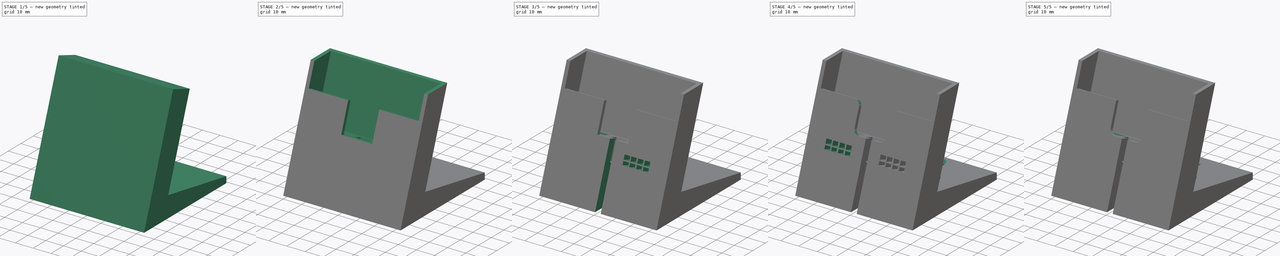
[diagram: build sequence overview — one tinted view per stage of 5, left to right]
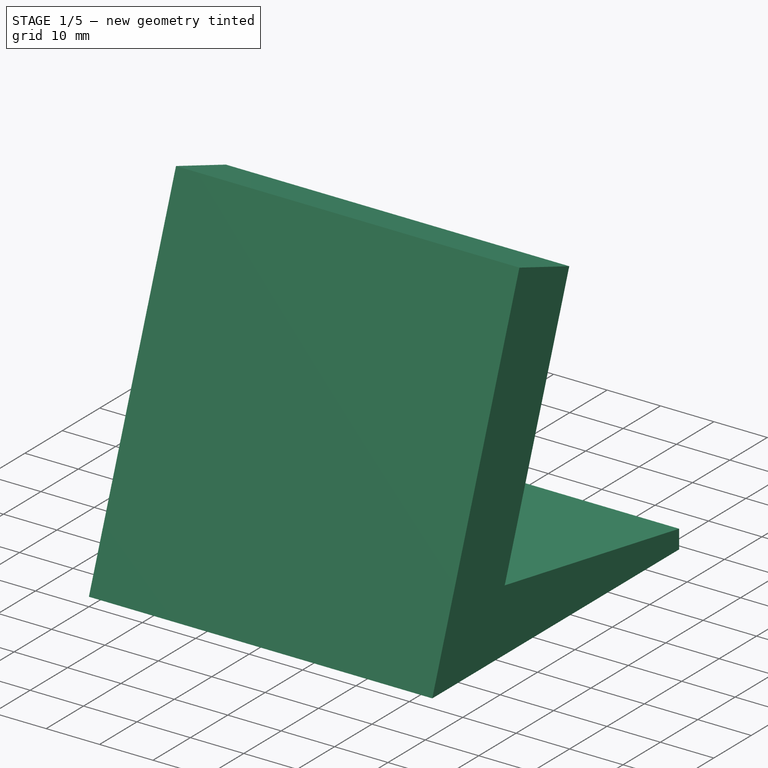
[diagram: stage 1 of 5 — iso view after this stage's code; geometry added in this stage tinted green]
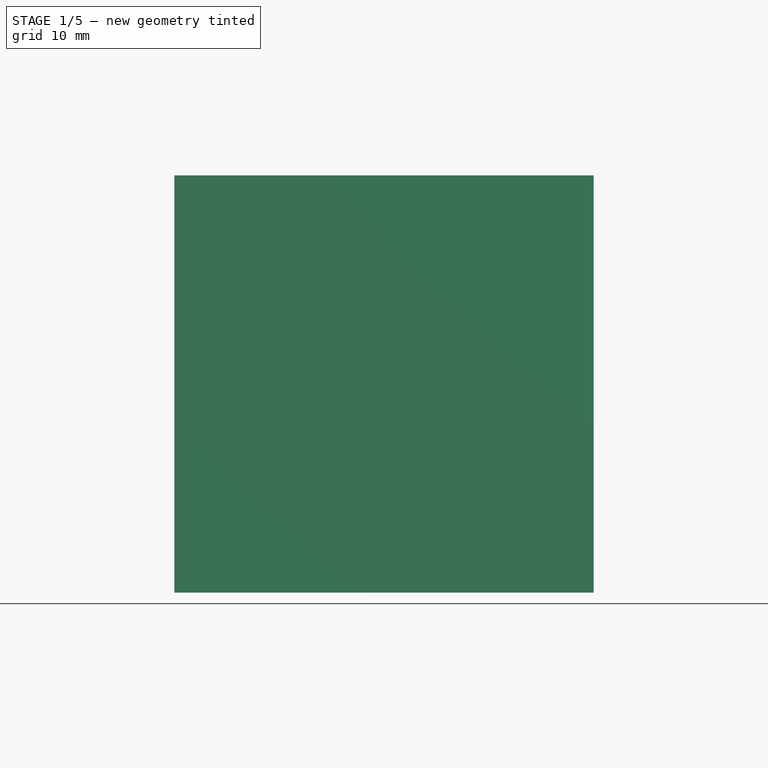
[diagram: stage 1 of 5 — front view after this stage's code; geometry added in this stage tinted green]
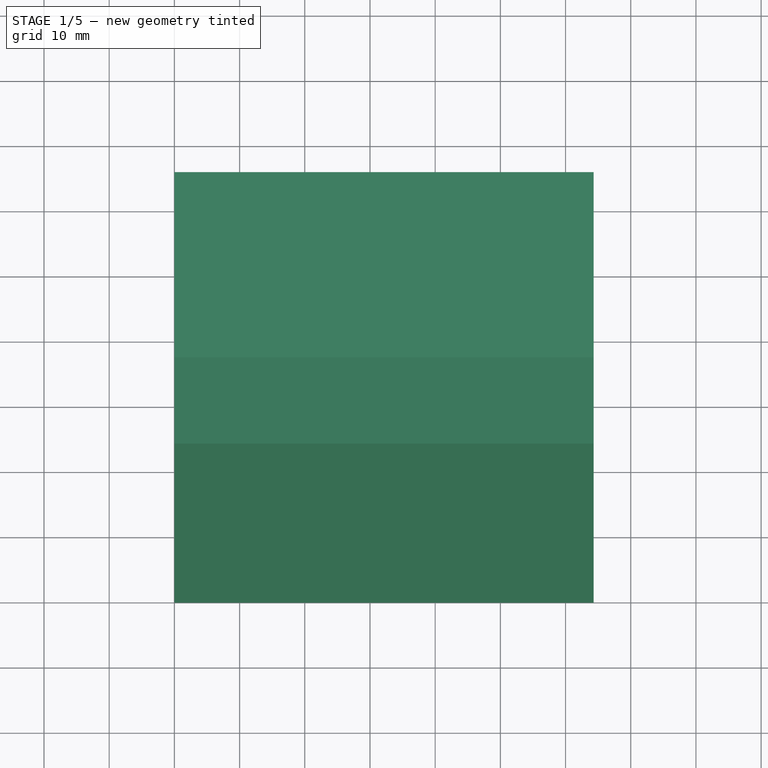
[diagram: stage 1 of 5 — top view after this stage's code; geometry added in this stage tinted green]
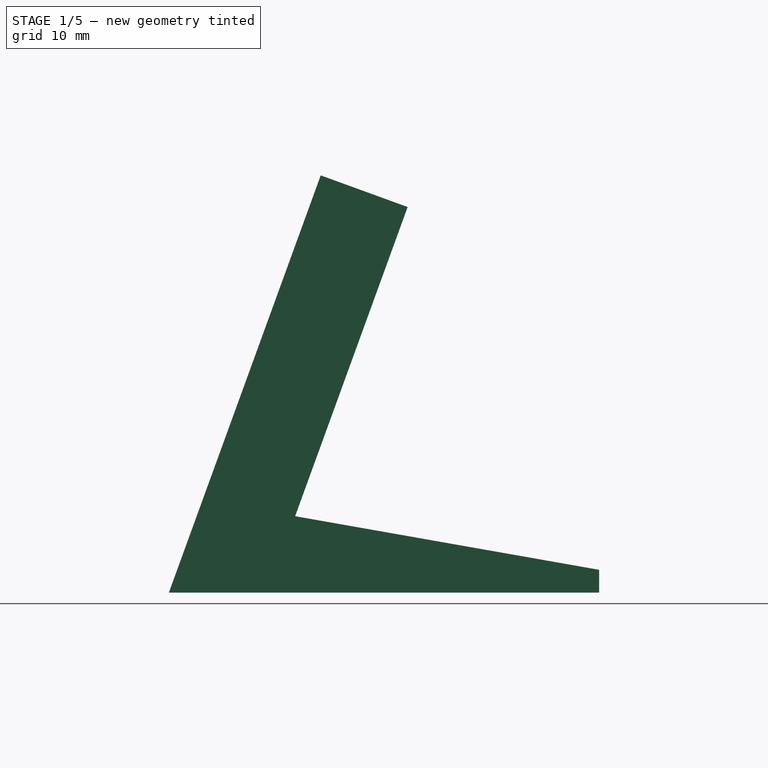
[diagram: stage 1 of 5 — right view after this stage's code; geometry added in this stage tinted green]
FCSTD DOCUMENT  (FreeCAD 0.16R6706 (Git))
Label: dock10_bumps
License: All rights reserved
LicenseURL: http://en.wikipedia.org/wiki/All_rights_reserved
objects: Sketcher::SketchObject×15, PartDesign::Pocket×12, PartDesign::Chamfer×4, PartDesign::Pad×3, PartDesign::Fillet×2, PartDesign::Mirrored×1
note: 52 computed .brp shape members not serialized (recipe doc carries the construction recipe); baked Part::Feature solids carry a one-line shape summary decoded from their .brp

FEATURE [Sketcher::SketchObject] Sketch
  sketch-geometry (8):
    g0: LineSegment [constr] StartX=2 StartY=-2 StartZ=0 EndX=62.3 EndY=-2 EndZ=0
    g1: LineSegment StartX=0 StartY=0 StartZ=0 EndX=64.3 EndY=0 EndZ=0
    g2: LineSegment StartX=64.3 StartY=0 StartZ=0 EndX=64.3 EndY=66 EndZ=0
    g3: LineSegment StartX=64.3 StartY=66 StartZ=0 EndX=0 EndY=66 EndZ=0
    g4: LineSegment StartX=0 StartY=66 StartZ=0 EndX=0 EndY=0 EndZ=0
    g5: LineSegment [constr] StartX=2 StartY=-2 StartZ=0 EndX=0 EndY=-2 EndZ=0
    g6: LineSegment [constr] StartX=62.3 StartY=-2 StartZ=0 EndX=64.3 EndY=-2 EndZ=0
    g7: LineSegment [constr] StartX=64.3 StartY=-2 StartZ=0 EndX=64.3 EndY=0 EndZ=0
  constraints (23):
    c: Horizontal(g0)
    c: DistanceX(g0,g0) = 60.3
    c: Coincident(g1,g2)
    c: Coincident(g2,g3)
    c: Coincident(g3,g4)
    c: Coincident(g4,g1)
    c: Horizontal(g1)
    c: Horizontal(g3)
    c: Vertical(g2)
    c: Vertical(g4)
    c: Coincident(g1,g-1)
    c: Coincident(g5,g0)
    c: PointOnObject(g5,g4)
    c: Horizontal(g5)
    c: DistanceX(g5,g5) = 2
    c: Coincident(g6,g0)
    c: PointOnObject(g6,g2)
    c: Equal(g6,g5)
    c: Horizontal(g6)
    c: DistanceY(g2,g2) = 66
    c: Coincident(g7,g1)
    c: Coincident(g7,g6)
    c: DistanceY(g7,g7) = 2
FEATURE [PartDesign::Pad] Pad
  Length = 64
  Length2 = 100
  Sketch = -> Sketch
  Type = 0
FEATURE [Sketcher::SketchObject] Sketch001
  ExternalGeometry = -> [Pad]
  Placement = pos=(64.3,0,0) rot=(0.57735,0.57735,0.57735;2.0944rad)
  Support = -> Pad [Face2]
  sketch-geometry (3):
    g0: LineSegment StartX=0 StartY=0 StartZ=0 EndX=0 EndY=64 EndZ=0
    g1: LineSegment StartX=0 StartY=0 StartZ=0 EndX=23.2941 EndY=64 EndZ=0
    g2: LineSegment StartX=23.2941 StartY=64 StartZ=0 EndX=0 EndY=64 EndZ=0
  constraints (7):
    c: Coincident(g0,g-1)
    c: Coincident(g0,g-4)
    c: Coincident(g1,g-1)
    c: PointOnObject(g1,g-4)
    c: Coincident(g2,g1)
    c: Coincident(g2,g0)
    c: Angle(g1,g-3) = 0.349066
FEATURE [PartDesign::Pocket] Pocket
  Length = 5
  Sketch = -> Sketch001
  Type = 1
FEATURE [Sketcher::SketchObject] Sketch002
  ExternalGeometry = -> [Pocket]
  Placement = pos=(64.3,0,0) rot=(0.57735,0.57735,0.57735;2.0944rad)
  Support = -> Pocket [Face3]
  sketch-geometry (4):
    g0: LineSegment StartX=38.3941 StartY=64 StartZ=0 EndX=19.3667 EndY=11.7227 EndZ=0
    g1: LineSegment StartX=19.3667 StartY=11.7227 StartZ=0 EndX=66 EndY=3.5 EndZ=0
    g2: LineSegment StartX=38.3941 StartY=64 StartZ=0 EndX=66 EndY=64 EndZ=0
    g3: LineSegment StartX=66 StartY=64 StartZ=0 EndX=66 EndY=3.5 EndZ=0
  constraints (11):
    c: PointOnObject(g0,g-3)
    c: Coincident(g1,g0)
    c: PointOnObject(g1,g-4)
    c: Parallel(g0,g-5)
    c: Coincident(g2,g0)
    c: Coincident(g2,g-4)
    c: Coincident(g3,g2)
    c: Coincident(g3,g1)
    c: DistanceX(g-5,g0) = 15.1
    c: DistanceY(g-4,g1) = 3.5
    c: Angle(g1,g0) = 1.39626
FEATURE [PartDesign::Pocket] Pocket001
  Length = 5
  Sketch = -> Sketch002
  Type = 1
FEATURE [Sketcher::SketchObject] Sketch003
  ExternalGeometry = -> [Pocket001]
  Placement = pos=(64.3,0,0) rot=(0.57735,0.57735,0.57735;2.0944rad)
  Support = -> Pocket001 [Face3]
  sketch-geometry (3):
    g0: LineSegment StartX=23.2941 StartY=64 StartZ=0 EndX=36.6277 EndY=59.147 EndZ=0
    g1: LineSegment StartX=38.3941 StartY=64 StartZ=0 EndX=36.6277 EndY=59.147 EndZ=0
    g2: LineSegment StartX=38.3941 StartY=64 StartZ=0 EndX=23.2941 EndY=64 EndZ=0
  constraints (7):
    c: Coincident(g0,g-3)
    c: PointOnObject(g0,g-4)
    c: Coincident(g1,g-4)
    c: Coincident(g1,g0)
    c: Coincident(g2,g1)
    c: Coincident(g2,g0)
    c: Perpendicular(g-4,g0)
FEATURE [PartDesign::Pocket] Pocket002
  Length = 5
  Sketch = -> Sketch003
  Type = 1
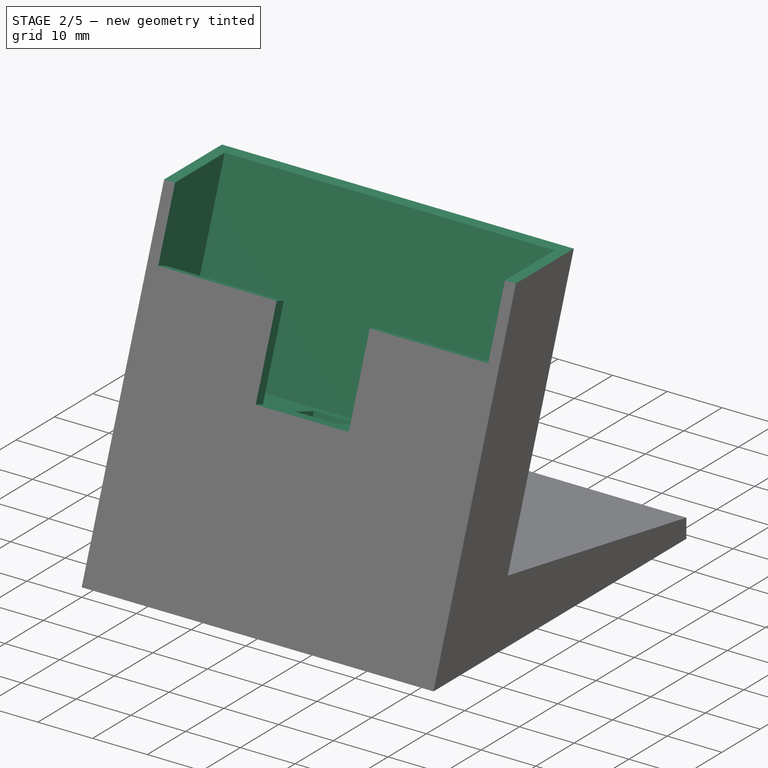
[diagram: stage 2 of 5 — iso view after this stage's code; geometry added in this stage tinted green]
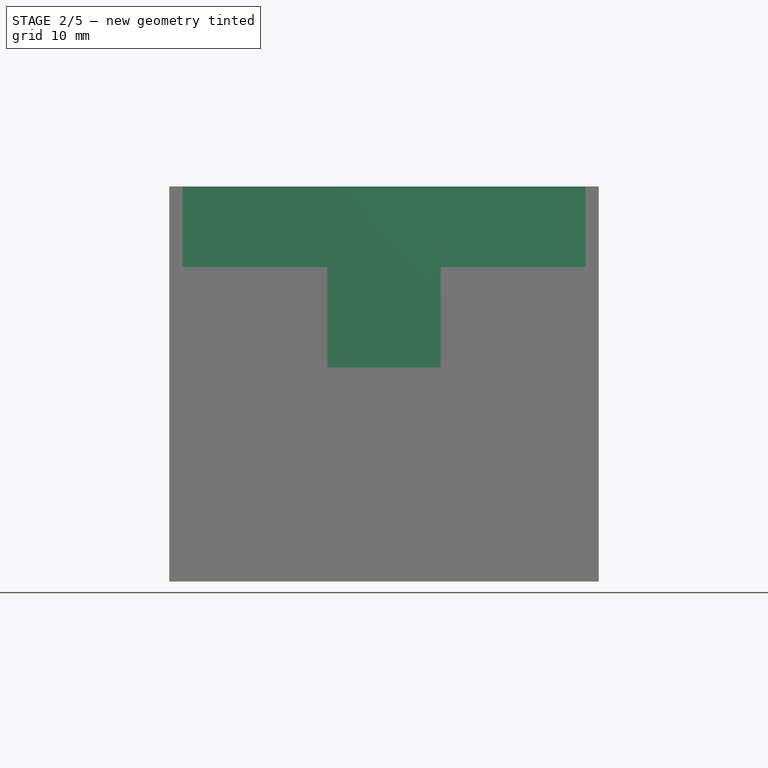
[diagram: stage 2 of 5 — front view after this stage's code; geometry added in this stage tinted green]
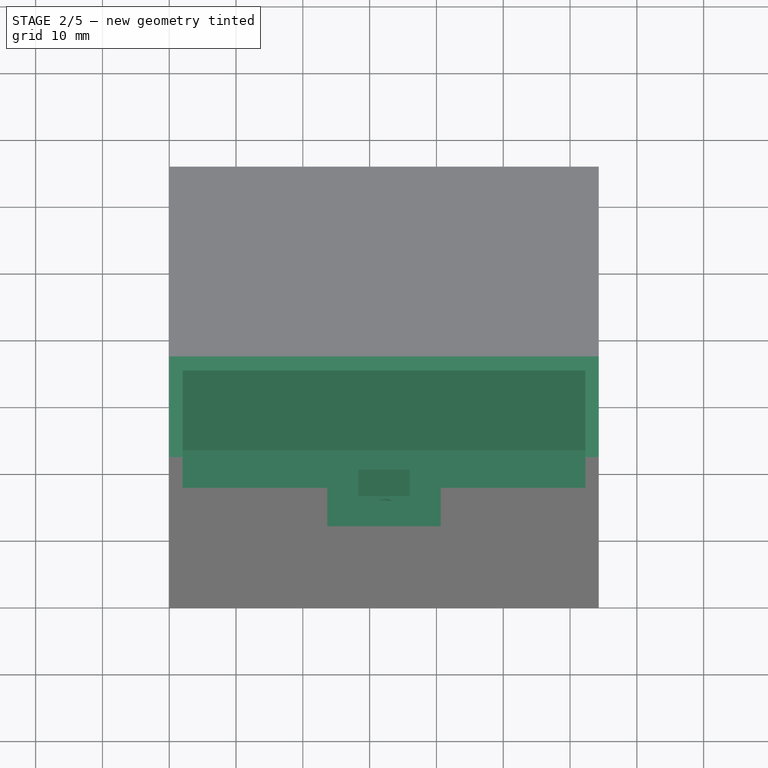
[diagram: stage 2 of 5 — top view after this stage's code; geometry added in this stage tinted green]
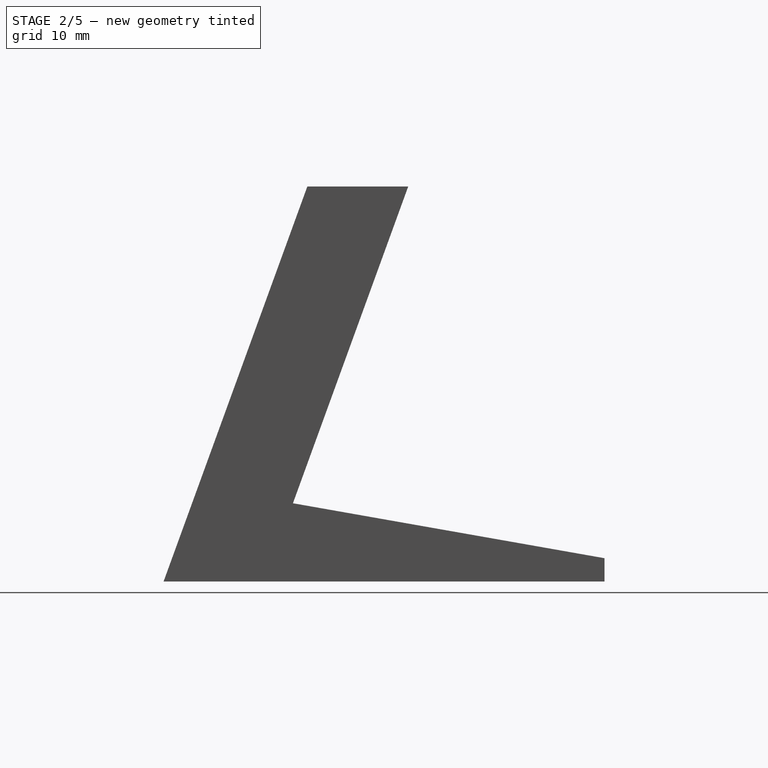
[diagram: stage 2 of 5 — right view after this stage's code; geometry added in this stage tinted green]
FEATURE [Sketcher::SketchObject] Sketch004
  ExternalGeometry = -> [Pocket002]
  Placement = pos=(0,23.2941,64) rot=(-1,0,0;0.349066rad)
  Support = -> Pocket002 [Face6]
  sketch-geometry (8):
    g0: LineSegment StartX=2 StartY=12.1894 StartZ=0 EndX=62.3 EndY=12.1894 EndZ=0
    g1: LineSegment StartX=62.3 StartY=12.1894 StartZ=0 EndX=62.3 EndY=1.98936 EndZ=0
    g2: LineSegment StartX=62.3 StartY=1.98936 StartZ=0 EndX=2 EndY=1.98936 EndZ=0
    g3: LineSegment StartX=2 StartY=1.98936 StartZ=0 EndX=2 EndY=12.1894 EndZ=0
    g4: LineSegment [constr] StartX=2 StartY=12.1894 StartZ=0 EndX=0 EndY=12.1894 EndZ=0
    g5: LineSegment [constr] StartX=2 StartY=12.1894 StartZ=0 EndX=2 EndY=14.1894 EndZ=0
    g6: LineSegment [constr] StartX=62.3 StartY=12.1894 StartZ=0 EndX=64.3 EndY=12.1894 EndZ=0
    g7: LineSegment [constr] StartX=62.3 StartY=12.1894 StartZ=0 EndX=62.3 EndY=14.1894 EndZ=0
  constraints (25):
    c: Coincident(g0,g1)
    c: Coincident(g1,g2)
    c: Coincident(g2,g3)
    c: Coincident(g3,g0)
    c: Horizontal(g0)
    c: Horizontal(g2)
    c: Vertical(g1)
    c: Vertical(g3)
    c: Coincident(g4,g0)
    c: PointOnObject(g4,g-3)
    c: Horizontal(g4)
    c: DistanceX(g4,g4) = 2
    c: Coincident(g5,g0)
    c: PointOnObject(g5,g-4)
    c: Vertical(g5)
    c: DistanceY(g5,g5) = 2
    c: Coincident(g6,g0)
    c: PointOnObject(g6,g-6)
    c: Horizontal(g6)
    c: Equal(g6,g4)
    c: Coincident(g7,g0)
    c: PointOnObject(g7,g-4)
    c: Vertical(g7)
    c: Equal(g7,g5)
    c: Distance(g3) = 10.2
FEATURE [PartDesign::Pocket] Pocket003
  Length = 34
  Sketch = -> Sketch004
  Type = 0
FEATURE [Sketcher::SketchObject] Sketch005
  ExternalGeometry = -> [Pocket003]
  Placement = pos=(0,1.86939,-0.680401) rot=(0,0.819152,0.573576;3.14159rad)
  Support = -> Pocket003 [Face12]
  sketch-geometry (8):
    g0: LineSegment StartX=-62.3 StartY=50.1074 StartZ=0 EndX=-40.65 EndY=50.1074 EndZ=0
    g1: LineSegment StartX=-40.65 StartY=50.1074 StartZ=0 EndX=-40.65 EndY=34.1074 EndZ=0
    g2: LineSegment StartX=-40.65 StartY=34.1074 StartZ=0 EndX=-23.65 EndY=34.1074 EndZ=0
    g3: LineSegment StartX=-23.65 StartY=34.1074 StartZ=0 EndX=-23.65 EndY=50.1074 EndZ=0
    g4: LineSegment StartX=-23.65 StartY=50.1074 StartZ=0 EndX=-2 EndY=50.1074 EndZ=0
    g5: LineSegment StartX=-62.3 StartY=50.1074 StartZ=0 EndX=-62.3 EndY=68.1074 EndZ=0
    g6: LineSegment StartX=-2 StartY=50.1074 StartZ=0 EndX=-2 EndY=68.1074 EndZ=0
    g7: LineSegment StartX=-2 StartY=68.1074 StartZ=0 EndX=-62.3 EndY=68.1074 EndZ=0
  constraints (22):
    c: Horizontal(g0)
    c: Vertical(g1)
    c: PointOnObject(g0,g-4)
    c: Coincident(g0,g1)
    c: PointOnObject(g1,g-3)
    c: DistanceY(g1,g1) = 16
    c: Coincident(g2,g1)
    c: PointOnObject(g2,g-3)
    c: DistanceX(g2,g2) = 17
    c: Coincident(g2,g3)
    c: Vertical(g3)
    c: Equal(g3,g1)
    c: Coincident(g4,g3)
    c: PointOnObject(g4,g-5)
    c: Horizontal(g4)
    c: Equal(g4,g0)
    c: Coincident(g5,g0)
    c: Coincident(g5,g-6)
    c: Coincident(g6,g4)
    c: Coincident(g6,g-6)
    c: Coincident(g7,g6)
    c: Coincident(g7,g5)
FEATURE [PartDesign::Pocket] Pocket004
  Length = 5
  Sketch = -> Sketch005
  Type = 1
FEATURE [Sketcher::SketchObject] Sketch006
  ExternalGeometry = -> [Pocket004]
  Placement = pos=(64.3,0,0) rot=(0.57735,0.57735,0.57735;2.0944rad)
  Support = -> Pocket004 [Face3]
  sketch-geometry (3):
    g0: LineSegment StartX=36.6277 StartY=59.147 StartZ=0 EndX=21.5277 EndY=59.147 EndZ=0
    g1: LineSegment StartX=21.5277 StartY=59.147 StartZ=0 EndX=23.2941 EndY=64 EndZ=0
    g2: LineSegment StartX=23.2941 StartY=64 StartZ=0 EndX=36.6277 EndY=59.147 EndZ=0
  constraints (7):
    c: Coincident(g0,g-3)
    c: PointOnObject(g0,g-4)
    c: Horizontal(g0)
    c: Coincident(g1,g0)
    c: Coincident(g1,g-4)
    c: Coincident(g2,g1)
    c: Coincident(g2,g0)
FEATURE [PartDesign::Pocket] Pocket005
  Length = 5
  Sketch = -> Sketch006
  Type = 1
FEATURE [Sketcher::SketchObject] Sketch007
  ExternalGeometry = -> [Pocket005]
  Placement = pos=(0,11.6654,32.0505) rot=(-1,0,0;0.349066rad)
  Support = -> Pocket005 [Face20]
  sketch-geometry (7):
    g0: LineSegment StartX=28.3 StartY=9.08936 StartZ=0 EndX=36 EndY=9.08936 EndZ=0
    g1: LineSegment StartX=36 StartY=9.08936 StartZ=0 EndX=36 EndY=4.08936 EndZ=0
    g2: LineSegment StartX=36 StartY=4.08936 StartZ=0 EndX=28.3 EndY=4.08936 EndZ=0
    g3: LineSegment StartX=28.3 StartY=4.08936 StartZ=0 EndX=28.3 EndY=9.08936 EndZ=0
    g4: LineSegment [constr] StartX=28.3 StartY=9.08936 StartZ=0 EndX=2 EndY=9.08936 EndZ=0
    g5: LineSegment [constr] StartX=36 StartY=9.08936 StartZ=0 EndX=62.3 EndY=9.08936 EndZ=0
    g6: LineSegment [constr] StartX=28.3 StartY=9.08936 StartZ=0 EndX=28.3 EndY=12.1894 EndZ=0
  constraints (21):
    c: Coincident(g0,g1)
    c: Coincident(g1,g2)
    c: Coincident(g2,g3)
    c: Coincident(g3,g0)
    c: Horizontal(g0)
    c: Horizontal(g2)
    c: Vertical(g1)
    c: Vertical(g3)
    c: DistanceX(g0,g0) = 7.7
    c: DistanceY(g1,g1) = 5
    c: Coincident(g4,g0)
    c: PointOnObject(g4,g-5)
    c: Horizontal(g4)
    c: Coincident(g5,g0)
    c: PointOnObject(g5,g-4)
    c: Horizontal(g5)
    c: Equal(g5,g4)
    c: Coincident(g6,g0)
    c: PointOnObject(g6,g-3)
    c: Vertical(g6)
    c: DistanceY(g6,g6) = 3.1
FEATURE [PartDesign::Pocket] Pocket006
  Length = 11.1
  Sketch = -> Sketch007
  Type = 0
FEATURE [Sketcher::SketchObject] Sketch008
  ExternalGeometry = -> [Pocket006]
  Placement = pos=(0,7.86899,21.6199) rot=(-1,0,0;0.349066rad)
  Support = -> Pocket006 [Face26]
  sketch-geometry (5):
    g0: Circle CenterX=32.15 CenterY=6.58936 CenterZ=0 NormalX=0 NormalY=0 NormalZ=1 Radius=2.1
    g1: LineSegment [constr] StartX=32.15 StartY=6.58936 StartZ=0 EndX=33.2937 EndY=8.35061 EndZ=0
    g2: LineSegment [constr] StartX=28.3 StartY=6.86402 StartZ=0 EndX=28.3 EndY=9.08936 EndZ=0
    g3: LineSegment [constr] StartX=32.15 StartY=6.58936 StartZ=0 EndX=28.3 EndY=9.08936 EndZ=0
    g4: LineSegment [constr] StartX=32.15 StartY=6.58936 StartZ=0 EndX=36 EndY=4.08936 EndZ=0
  constraints (12):
    c: Coincident(g1,g0)
    c: PointOnObject(g1,g0)
    c: Distance(g1) = 2.1
    c: PointOnObject(g2,g-3)
    c: Vertical(g2)
    c: Coincident(g3,g0)
    c: Coincident(g3,g-3)
    c: Coincident(g4,g0)
    c: Coincident(g4,g-4)
    c: Parallel(g4,g3)
    c: Equal(g3,g4)
    c: Perpendicular(g4,g1)
FEATURE [PartDesign::Pocket] Pocket007
  Length = 14
  Sketch = -> Sketch008
  Type = 1
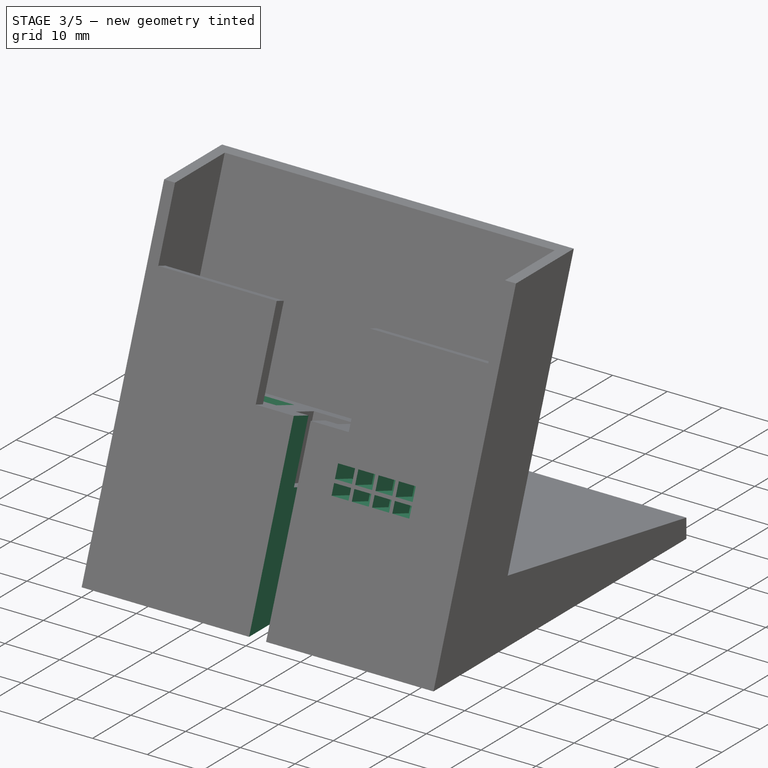
[diagram: stage 3 of 5 — iso view after this stage's code; geometry added in this stage tinted green]
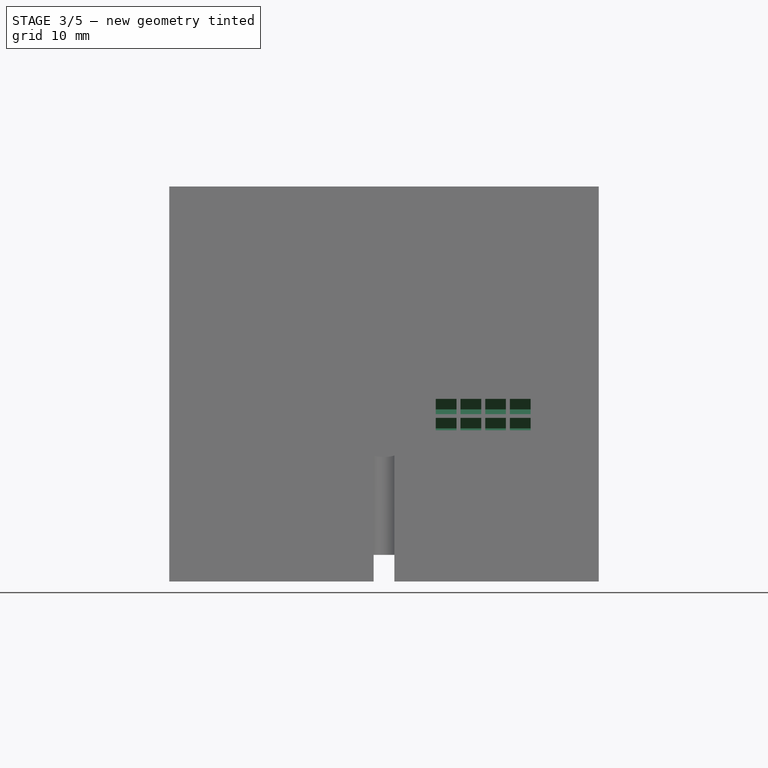
[diagram: stage 3 of 5 — front view after this stage's code; geometry added in this stage tinted green]
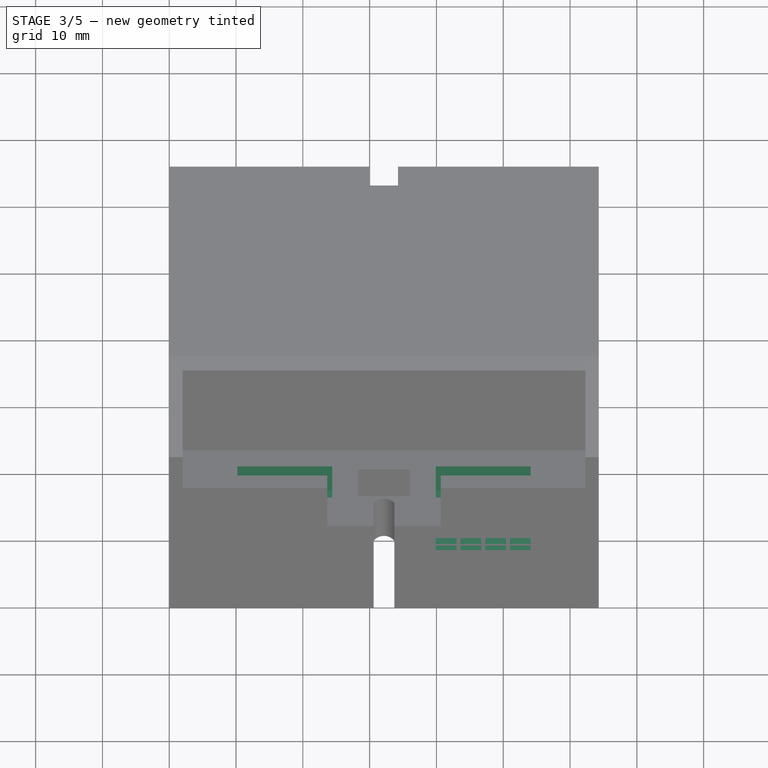
[diagram: stage 3 of 5 — top view after this stage's code; geometry added in this stage tinted green]
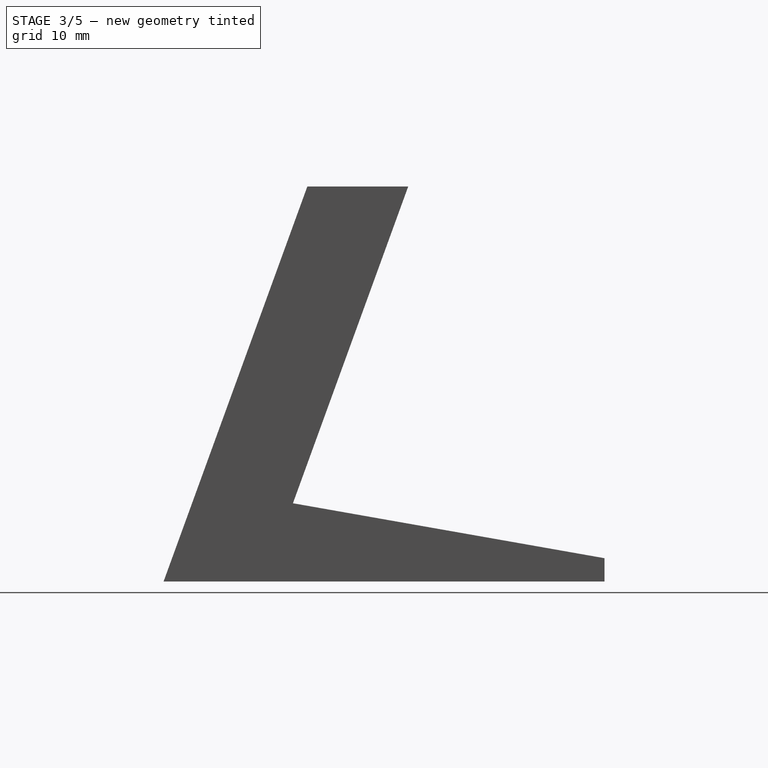
[diagram: stage 3 of 5 — right view after this stage's code; geometry added in this stage tinted green]
FEATURE [Sketcher::SketchObject] Sketch009
  ExternalGeometry = -> [Pocket007]
  Placement = pos=(0,0,0) rot=(1,0,0;1.22173rad)
  Support = -> Pocket007 [Face2]
  sketch-geometry (7):
    g0: LineSegment StartX=30.6 StartY=34.1074 StartZ=0 EndX=33.7 EndY=34.1074 EndZ=0
    g1: LineSegment StartX=33.7 StartY=34.1074 StartZ=0 EndX=33.7 EndY=0 EndZ=0
    g2: LineSegment StartX=33.7 StartY=0 StartZ=0 EndX=30.6 EndY=0 EndZ=0
    g3: LineSegment StartX=30.6 StartY=0 StartZ=0 EndX=30.6 EndY=34.1074 EndZ=0
    g4: LineSegment [constr] StartX=33.7 StartY=15.7961 StartZ=0 EndX=64.3 EndY=15.7961 EndZ=0
    g5: LineSegment [constr] StartX=30.6 StartY=15.7961 StartZ=0 EndX=0 EndY=15.7961 EndZ=0
    g6: LineSegment [constr] StartX=30.6 StartY=15.7961 StartZ=0 EndX=33.7 EndY=15.7961 EndZ=0
  constraints (21):
    c: Coincident(g0,g1)
    c: Coincident(g1,g2)
    c: Coincident(g2,g3)
    c: Coincident(g3,g0)
    c: Horizontal(g0)
    c: Horizontal(g2)
    c: Vertical(g1)
    c: Vertical(g3)
    c: PointOnObject(g0,g-3)
    c: PointOnObject(g1,g-6)
    c: DistanceX(g0,g0) = 3.1
    c: PointOnObject(g4,g1)
    c: PointOnObject(g4,g-5)
    c: Horizontal(g4)
    c: PointOnObject(g5,g3)
    c: PointOnObject(g5,g-4)
    c: Horizontal(g5)
    c: Equal(g4,g5)
    c: Coincident(g6,g5)
    c: Coincident(g6,g4)
    c: Horizontal(g6)
FEATURE [PartDesign::Pocket] Pocket008
  Length = 6
  Sketch = -> Sketch009
  Type = 0
FEATURE [Sketcher::SketchObject] Sketch010
  ExternalGeometry = -> [Pocket008]
  Placement = pos=(0,66,0) rot=(0,0.707107,0.707107;3.14159rad)
  Support = -> Pocket008 [Face3]
  sketch-geometry (6):
    g0: LineSegment StartX=-34.245 StartY=0 StartZ=0 EndX=-30.055 EndY=0 EndZ=0
    g1: LineSegment StartX=-30.055 StartY=0 StartZ=0 EndX=-30.055 EndY=4 EndZ=0
    g2: LineSegment StartX=-30.055 StartY=4 StartZ=0 EndX=-34.245 EndY=4 EndZ=0
    g3: LineSegment StartX=-34.245 StartY=4 StartZ=0 EndX=-34.245 EndY=0 EndZ=0
    g4: LineSegment [constr] StartX=-34.245 StartY=0 StartZ=0 EndX=-64.3 EndY=0 EndZ=0
    g5: LineSegment [constr] StartX=-30.055 StartY=0 StartZ=0 EndX=0 EndY=0 EndZ=0
  constraints (16):
    c: Coincident(g0,g1)
    c: Coincident(g1,g2)
    c: Coincident(g2,g3)
    c: Coincident(g3,g0)
    c: Horizontal(g0)
    c: Horizontal(g2)
    c: Vertical(g1)
    c: Vertical(g3)
    c: PointOnObject(g0,g-4)
    c: DistanceX(g2,g2) = 4.19
    c: Coincident(g4,g0)
    c: Coincident(g4,g-4)
    c: Coincident(g5,g0)
    c: Coincident(g5,g-1)
    c: Equal(g4,g5)
    c: DistanceY(g1,g1) = 4
FEATURE [PartDesign::Pocket] Pocket009
  Length = 58.7
  Sketch = -> Sketch010
  Type = 0
FEATURE [Sketcher::SketchObject] Sketch011
  ExternalGeometry = -> [Pocket009]
  Placement = pos=(0,11.6654,32.0505) rot=(-1,0,0;0.349066rad)
  Support = -> Pocket009 [Face26]
  sketch-geometry (14):
    g0: LineSegment StartX=10.2 StartY=9.58936 StartZ=0 EndX=24.4 EndY=9.58936 EndZ=0
    g1: LineSegment StartX=24.4 StartY=9.58936 StartZ=0 EndX=24.4 EndY=4.58936 EndZ=0
    g2: LineSegment StartX=24.4 StartY=4.58936 StartZ=0 EndX=10.2 EndY=4.58936 EndZ=0
    g3: LineSegment StartX=10.2 StartY=4.58936 StartZ=0 EndX=10.2 EndY=9.58936 EndZ=0
    g4: LineSegment StartX=39.9 StartY=9.58936 StartZ=0 EndX=54.1 EndY=9.58936 EndZ=0
    g5: LineSegment StartX=54.1 StartY=9.58936 StartZ=0 EndX=54.1 EndY=4.58936 EndZ=0
    g6: LineSegment StartX=54.1 StartY=4.58936 StartZ=0 EndX=39.9 EndY=4.58936 EndZ=0
    g7: LineSegment StartX=39.9 StartY=4.58936 StartZ=0 EndX=39.9 EndY=9.58936 EndZ=0
    g8: LineSegment [constr] StartX=10.2 StartY=9.58936 StartZ=0 EndX=2 EndY=9.58936 EndZ=0
    g9: LineSegment [constr] StartX=54.1 StartY=9.58936 StartZ=0 EndX=62.3 EndY=9.58936 EndZ=0
    g10: LineSegment [constr] StartX=39.9 StartY=9.58936 StartZ=0 EndX=39.9 EndY=12.1894 EndZ=0
    g11: LineSegment [constr] StartX=24.4 StartY=9.58936 StartZ=0 EndX=24.4 EndY=12.1894 EndZ=0
    g12: LineSegment [constr] StartX=10.2 StartY=9.58936 StartZ=0 EndX=2 EndY=12.1894 EndZ=0
    g13: LineSegment [constr] StartX=10.2 StartY=4.58936 StartZ=0 EndX=2 EndY=1.98936 EndZ=0
  constraints (40):
    c: Coincident(g0,g1)
    c: Coincident(g1,g2)
    c: Coincident(g2,g3)
    c: Coincident(g3,g0)
    c: Horizontal(g0)
    c: Horizontal(g2)
    c: Vertical(g1)
    c: Vertical(g3)
    c: Coincident(g4,g5)
    c: Coincident(g5,g6)
    c: Coincident(g6,g7)
    c: Coincident(g7,g4)
    c: Horizontal(g4)
    c: Horizontal(g6)
    c: Vertical(g5)
    c: Vertical(g7)
    c: Equal(g4,g0)
    c: Equal(g7,g3)
    c: Coincident(g8,g0)
    c: PointOnObject(g8,g-5)
    c: Horizontal(g8)
    c: Coincident(g9,g4)
    c: PointOnObject(g9,g-4)
    c: Horizontal(g9)
    c: Coincident(g10,g4)
    c: PointOnObject(g10,g-3)
    c: Vertical(g10)
    c: Coincident(g11,g0)
    c: PointOnObject(g11,g-3)
    c: Vertical(g11)
    c: Equal(g11,g10)
    c: Equal(g9,g8)
    c: DistanceX(g0,g0) = 14.2
    c: DistanceX(g8,g8) = 8.2
    c: DistanceY(g3,g3) = 5
    c: Coincident(g12,g0)
    c: Coincident(g12,g-5)
    c: Coincident(g13,g2)
    c: Coincident(g13,g-5)
    c: Equal(g13,g12)
FEATURE [PartDesign::Pocket] Pocket010
  Length = 10
  Sketch = -> Sketch011
  Type = 0
FEATURE [Sketcher::SketchObject] Sketch012
  ExternalGeometry = -> [Pocket010]
  Placement = pos=(0,0,0) rot=(1,0,0;1.22173rad)
  Support = -> Pocket010 [Face9]
  sketch-geometry (49):
    g0: LineSegment [constr] StartX=33.7 StartY=34.1074 StartZ=0 EndX=64.3 EndY=34.1074 EndZ=0
    g1: LineSegment [constr] StartX=39.9 StartY=24.1074 StartZ=0 EndX=64.3 EndY=24.1074 EndZ=0
    g2: LineSegment [constr] StartX=39.9 StartY=29.1074 StartZ=0 EndX=54.1 EndY=29.1074 EndZ=0
    g3: LineSegment [constr] StartX=54.1 StartY=29.1074 StartZ=0 EndX=54.1 EndY=24.1074 EndZ=0
    g4: LineSegment [constr] StartX=39.9 StartY=29.1074 StartZ=0 EndX=39.9 EndY=24.1074 EndZ=0
    g5: LineSegment [constr] StartX=39.9 StartY=29.1074 StartZ=0 EndX=39.9 EndY=34.1074 EndZ=0
    g6: LineSegment StartX=39.9 StartY=29.1074 StartZ=0 EndX=43 EndY=29.1074 EndZ=0
    g7: LineSegment StartX=43 StartY=29.1074 StartZ=0 EndX=43 EndY=26.6739 EndZ=0
    g8: LineSegment StartX=43 StartY=26.6739 StartZ=0 EndX=39.9 EndY=26.6739 EndZ=0
    g9: LineSegment StartX=39.9 StartY=26.6739 StartZ=0 EndX=39.9 EndY=29.1074 EndZ=0
    g10: LineSegment StartX=43.6 StartY=29.1074 StartZ=0 EndX=46.7 EndY=29.1074 EndZ=0
    g11: LineSegment StartX=46.7 StartY=29.1074 StartZ=0 EndX=46.7 EndY=26.6739 EndZ=0
    g12: LineSegment StartX=46.7 StartY=26.6739 StartZ=0 EndX=43.6 EndY=26.6739 EndZ=0
    g13: LineSegment StartX=43.6 StartY=26.6739 StartZ=0 EndX=43.6 EndY=29.1074 EndZ=0
    g14: LineSegment StartX=47.3 StartY=29.1074 StartZ=0 EndX=50.4 EndY=29.1074 EndZ=0
    g15: LineSegment StartX=50.4 StartY=29.1074 StartZ=0 EndX=50.4 EndY=26.6739 EndZ=0
    g16: LineSegment StartX=50.4 StartY=26.6739 StartZ=0 EndX=47.3 EndY=26.6739 EndZ=0
    g17: LineSegment StartX=47.3 StartY=26.6739 StartZ=0 EndX=47.3 EndY=29.1074 EndZ=0
    g18: LineSegment StartX=54.1 StartY=29.1074 StartZ=0 EndX=51 EndY=29.1074 EndZ=0
    g19: LineSegment StartX=51 StartY=29.1074 StartZ=0 EndX=51 EndY=26.6739 EndZ=0
    g20: LineSegment StartX=51 StartY=26.6739 StartZ=0 EndX=54.1 EndY=26.6739 EndZ=0
    g21: LineSegment StartX=54.1 StartY=26.6739 StartZ=0 EndX=54.1 EndY=29.1074 EndZ=0
    g22: LineSegment StartX=39.9 StartY=24.1074 StartZ=0 EndX=43 EndY=24.1074 EndZ=0
    g23: LineSegment StartX=43 StartY=24.1074 StartZ=0 EndX=43 EndY=26.0739 EndZ=0
    g24: LineSegment StartX=43 StartY=26.0739 StartZ=0 EndX=39.9 EndY=26.0739 EndZ=0
    g25: LineSegment StartX=39.9 StartY=26.0739 StartZ=0 EndX=39.9 EndY=24.1074 EndZ=0
    g26: LineSegment StartX=43.6 StartY=24.1074 StartZ=0 EndX=46.7 EndY=24.1074 EndZ=0
    g27: LineSegment StartX=46.7 StartY=24.1074 StartZ=0 EndX=46.7 EndY=26.0739 EndZ=0
    g28: LineSegment StartX=46.7 StartY=26.0739 StartZ=0 EndX=43.6 EndY=26.0739 EndZ=0
    g29: LineSegment StartX=43.6 StartY=26.0739 StartZ=0 EndX=43.6 EndY=24.1074 EndZ=0
    g30: LineSegment StartX=47.3 StartY=24.1074 StartZ=0 EndX=50.4 EndY=24.1074 EndZ=0
    g31: LineSegment StartX=50.4 StartY=24.1074 StartZ=0 EndX=50.4 EndY=26.0739 EndZ=0
    g32: LineSegment StartX=50.4 StartY=26.0739 StartZ=0 EndX=47.3 EndY=26.0739 EndZ=0
    g33: LineSegment StartX=47.3 StartY=26.0739 StartZ=0 EndX=47.3 EndY=24.1074 EndZ=0
    g34: LineSegment StartX=54.1 StartY=24.1074 StartZ=0 EndX=51 EndY=24.1074 EndZ=0
    g35: LineSegment StartX=51 StartY=24.1074 StartZ=0 EndX=51 EndY=26.0739 EndZ=0
    g36: LineSegment StartX=51 StartY=26.0739 StartZ=0 EndX=54.1 EndY=26.0739 EndZ=0
    g37: LineSegment StartX=54.1 StartY=26.0739 StartZ=0 EndX=54.1 EndY=24.1074 EndZ=0
    g38: LineSegment [constr] StartX=50.4 StartY=26.6739 StartZ=0 EndX=51 EndY=26.6739 EndZ=0
    g39: LineSegment [constr] StartX=51 StartY=26.0739 StartZ=0 EndX=50.4 EndY=26.0739 EndZ=0
    g40: LineSegment [constr] StartX=47.3 StartY=26.0739 StartZ=0 EndX=46.7 EndY=26.0739 EndZ=0
    g41: LineSegment [constr] StartX=43.6 StartY=26.0739 StartZ=0 EndX=43 EndY=26.0739 EndZ=0
    g42: LineSegment [constr] StartX=43 StartY=26.6739 StartZ=0 EndX=43.6 EndY=26.6739 EndZ=0
    g43: LineSegment [constr] StartX=46.7 StartY=26.6739 StartZ=0 EndX=47.3 EndY=26.6739 EndZ=0
    g44: LineSegment [constr] StartX=43 StartY=26.6739 StartZ=0 EndX=43 EndY=26.0739 EndZ=0
    g45: LineSegment [constr] StartX=33.7 StartY=34.1074 StartZ=0 EndX=32.15 EndY=34.1074 EndZ=0
    g46: LineSegment [constr] StartX=32.15 StartY=34.1074 StartZ=0 EndX=30.6 EndY=34.1074 EndZ=0
    g47: LineSegment [constr] StartX=30.6 StartY=0 StartZ=0 EndX=33.7 EndY=0 EndZ=0
    g48: LineSegment [constr] StartX=32.15 StartY=34.1074 StartZ=0 EndX=32.15 EndY=0 EndZ=0
  constraints (135):
    c: Coincident(g0,g-3)
    c: PointOnObject(g0,g-4)
    c: Horizontal(g0)
    c: PointOnObject(g1,g-4)
    c: Horizontal(g1)
    c: Horizontal(g2)
    c: Coincident(g3,g2)
    c: PointOnObject(g3,g1)
    c: Vertical(g3)
    c: Coincident(g4,g2)
    c: Coincident(g4,g1)
    c: Vertical(g4)
    c: Coincident(g5,g2)
    c: PointOnObject(g5,g0)
    c: Vertical(g5)
    c: Equal(g4,g5)
    c: DistanceY(g1,g5) = 10
    c: Coincident(g6,g7)
    c: Coincident(g7,g8)
    c: Coincident(g8,g9)
    c: Coincident(g9,g6)
    c: Horizontal(g6)
    c: Horizontal(g8)
    c: Vertical(g7)
    c: Vertical(g9)
    c: Coincident(g6,g2)
    c: Coincident(g10,g11)
    c: Coincident(g11,g12)
    c: Coincident(g12,g13)
    c: Coincident(g13,g10)
    c: Horizontal(g10)
    c: Horizontal(g12)
    c: Vertical(g11)
    c: Vertical(g13)
    c: PointOnObject(g10,g2)
    c: Coincident(g14,g15)
    c: Coincident(g15,g16)
    c: Coincident(g16,g17)
    c: Coincident(g17,g14)
    c: Horizontal(g14)
    c: Horizontal(g16)
    c: Vertical(g15)
    c: Vertical(g17)
    c: PointOnObject(g14,g2)
    c: Coincident(g18,g19)
    c: Coincident(g19,g20)
    c: Coincident(g20,g21)
    c: Coincident(g21,g18)
    c: Horizontal(g18)
    c: Horizontal(g20)
    c: Vertical(g19)
    c: Vertical(g21)
    c: Coincident(g18,g2)
    c: Equal(g20,g16)
    c: Equal(g16,g12)
    c: Equal(g12,g8)
    c: DistanceX(g5,g0) = 24.4
    c: Coincident(g22,g23)
    c: Coincident(g23,g24)
    c: Coincident(g24,g25)
    c: Coincident(g25,g22)
    c: Horizontal(g22)
    c: Horizontal(g24)
    c: Vertical(g23)
    c: Vertical(g25)
    c: Coincident(g22,g1)
    c: Coincident(g26,g27)
    c: Coincident(g27,g28)
    c: Coincident(g28,g29)
    c: Coincident(g29,g26)
    c: Horizontal(g26)
    c: Horizontal(g28)
    c: Vertical(g27)
    c: Vertical(g29)
    c: PointOnObject(g26,g1)
    c: Coincident(g30,g31)
    c: Coincident(g31,g32)
    c: Coincident(g32,g33)
    c: Coincident(g33,g30)
    c: Horizontal(g30)
    c: Horizontal(g32)
    c: Vertical(g31)
    c: Vertical(g33)
    c: PointOnObject(g30,g1)
    c: Coincident(g34,g35)
    c: Coincident(g35,g36)
    c: Coincident(g36,g37)
    c: Coincident(g37,g34)
    c: Horizontal(g34)
    c: Horizontal(g36)
    c: Vertical(g35)
    c: Vertical(g37)
    c: Coincident(g34,g3)
    c: Equal(g28,g24)
    c: Equal(g24,g8)
    c: Equal(g8,g32)
    c: Equal(g32,g36)
    c: Coincident(g38,g15)
    c: Coincident(g38,g19)
    c: Coincident(g39,g35)
    c: Coincident(g39,g31)
    c: Horizontal(g39)
    c: Coincident(g40,g32)
    c: Coincident(g40,g27)
    c: Coincident(g41,g28)
    c: Coincident(g41,g23)
    c: Horizontal(g41)
    c: Coincident(g42,g7)
    c: Coincident(g42,g12)
    c: Horizontal(g42)
    c: Coincident(g43,g11)
    c: Coincident(g43,g16)
    c: Horizontal(g43)
    c: Horizontal(g38)
    c: Horizontal(g40)
    c: DistanceX(g42,g42) = 0.6
    c: Equal(g43,g42)
    c: Equal(g42,g41)
    c: Equal(g41,g40)
    c: Equal(g40,g39)
    c: Equal(g39,g38)
    c: Coincident(g44,g7)
    c: Coincident(g44,g23)
    c: DistanceY(g44,g44) = 0.6
    c: Coincident(g45,g0)
    c: Coincident(g46,g45)
    c: Coincident(g46,g-5)
    c: Coincident(g47,g-5)
    c: Coincident(g47,g-3)
    c: Horizontal(g46)
    c: Coincident(g48,g45)
    c: PointOnObject(g48,g47)
    c: Vertical(g48)
    c: Equal(g45,g46)
    c: DistanceX(g2,g2) = 14.2
FEATURE [PartDesign::Pocket] Pocket011
  Length = 5
  Sketch = -> Sketch012
  Type = 0
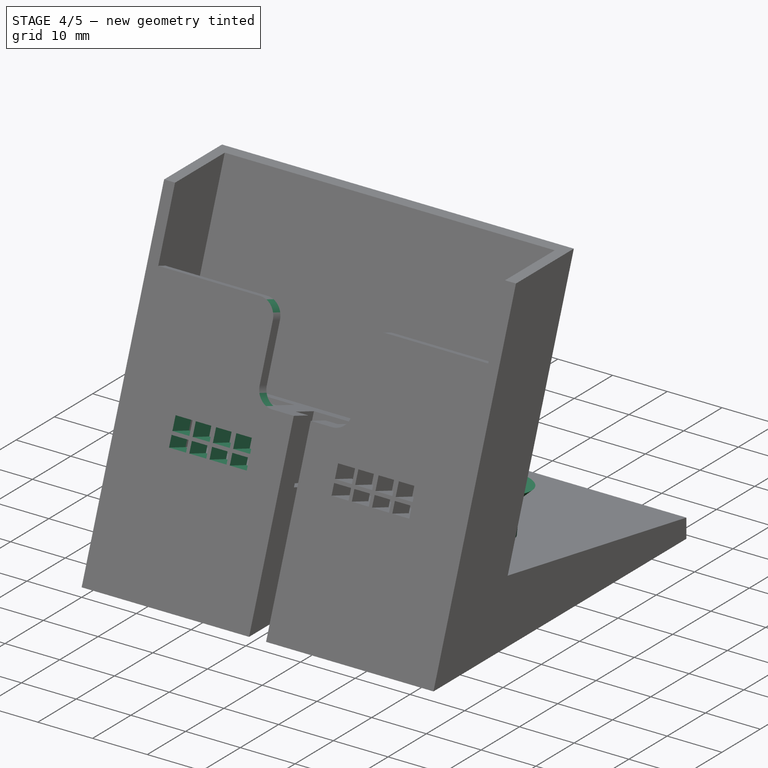
[diagram: stage 4 of 5 — iso view after this stage's code; geometry added in this stage tinted green]
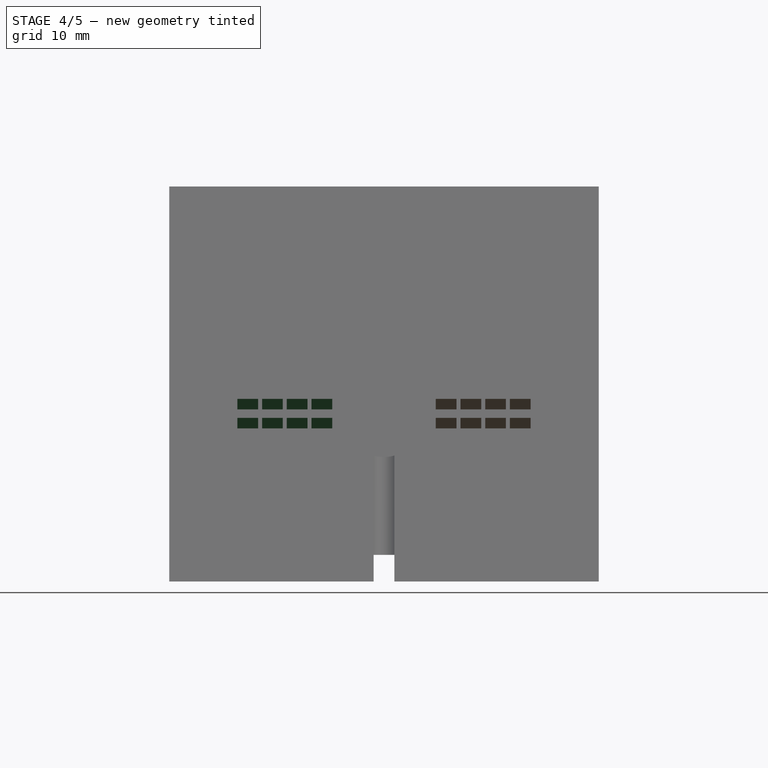
[diagram: stage 4 of 5 — front view after this stage's code; geometry added in this stage tinted green]
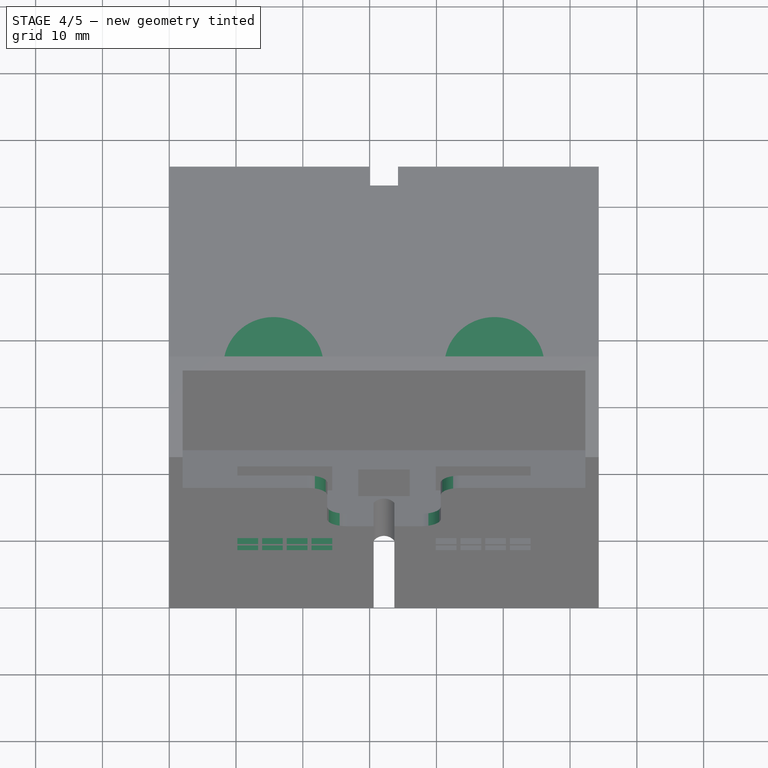
[diagram: stage 4 of 5 — top view after this stage's code; geometry added in this stage tinted green]
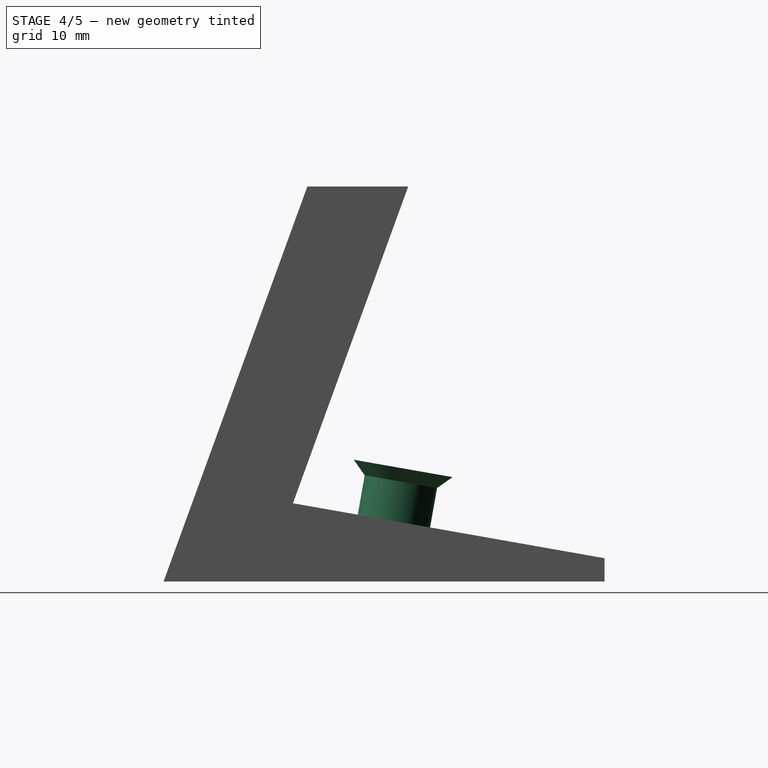
[diagram: stage 4 of 5 — right view after this stage's code; geometry added in this stage tinted green]
FEATURE [PartDesign::Mirrored] Mirrored
  MirrorPlane = -> Sketch012 [Axis16]
  Originals = -> [Pocket011]
FEATURE [Sketcher::SketchObject] Sketch013
  ExternalGeometry = -> [Mirrored]
  Placement = pos=(0,2.58868,14.6811) rot=(-1,0,0;0.174533rad)
  Support = -> Mirrored [Face10]
  sketch-geometry (7):
    g0: Circle CenterX=48.6859 CenterY=32.3895 CenterZ=0 NormalX=0 NormalY=0 NormalZ=1 Radius=5.5
    g1: LineSegment [constr] StartX=48.6859 StartY=32.3895 StartZ=0 EndX=51.0576 EndY=37.3519 EndZ=0
    g2: LineSegment [constr] StartX=48.6859 StartY=32.3895 StartZ=0 EndX=64.3 EndY=32.3895 EndZ=0
    g3: Circle CenterX=15.6141 CenterY=32.3895 CenterZ=0 NormalX=0 NormalY=0 NormalZ=1 Radius=5.5
    g4: LineSegment [constr] StartX=15.6141 StartY=32.3895 StartZ=0 EndX=15.8014 EndY=37.8864 EndZ=0
    g5: LineSegment [constr] StartX=48.6859 StartY=32.3895 StartZ=0 EndX=15.6141 EndY=32.3895 EndZ=0
    g6: LineSegment [constr] StartX=15.6141 StartY=32.3895 StartZ=0 EndX=0 EndY=32.3895 EndZ=0
  constraints (18):
    c: Coincident(g1,g0)
    c: PointOnObject(g1,g0)
    c: Distance(g1) = 5.5
    c: Coincident(g2,g0)
    c: PointOnObject(g2,g-5)
    c: Horizontal(g2)
    c: Coincident(g4,g3)
    c: PointOnObject(g4,g3)
    c: Equal(g1,g4) = 5.5
    c: Equal(g4,g1)
    c: Coincident(g5,g0)
    c: Coincident(g5,g3)
    c: Horizontal(g5)
    c: Coincident(g6,g3)
    c: PointOnObject(g6,g-2)
    c: Horizontal(g6)
    c: Equal(g6,g2)
    c: DistanceY(g2,g-5) = 32
FEATURE [PartDesign::Pad] Pad001
  Length = 6
  Length2 = 100
  Sketch = -> Sketch013
  Type = 0
FEATURE [Sketcher::SketchObject] Sketch014
  ExternalGeometry = -> [Pad001]
  Placement = pos=(0,3.63057,20.59) rot=(-1,0,0;0.174533rad)
  Support = -> Pad001 [Face96]
  sketch-geometry (4):
    g0: Circle CenterX=15.6141 CenterY=32.3895 CenterZ=0 NormalX=0 NormalY=0 NormalZ=1 Radius=7.5
    g1: Circle CenterX=48.6859 CenterY=32.3895 CenterZ=0 NormalX=0 NormalY=0 NormalZ=1 Radius=7.5
    g2: LineSegment [constr] StartX=15.6141 StartY=32.3895 StartZ=0 EndX=16.1738 EndY=39.8686 EndZ=0
    g3: LineSegment [constr] StartX=48.6859 StartY=32.3895 StartZ=0 EndX=47.5773 EndY=39.8072 EndZ=0
  constraints (8):
    c: Coincident(g2,g0)
    c: PointOnObject(g2,g0)
    c: Coincident(g3,g1)
    c: PointOnObject(g3,g1)
    c: Distance(g3) = 7.5
    c: Equal(g3,g2)
    c: Coincident(g1,g-3)
    c: Coincident(g0,g-4)
FEATURE [PartDesign::Pad] Pad002
  Length = 2
  Length2 = 100
  Sketch = -> Sketch014
  Type = 0
FEATURE [PartDesign::Chamfer] Chamfer001
  Base = -> Pad002 [Edge344,Edge345]
  Size = 1.99
FEATURE [PartDesign::Fillet] Fillet
  Base = -> Chamfer001 [Edge164,Edge166,Edge237,Edge239]
  Radius = 3
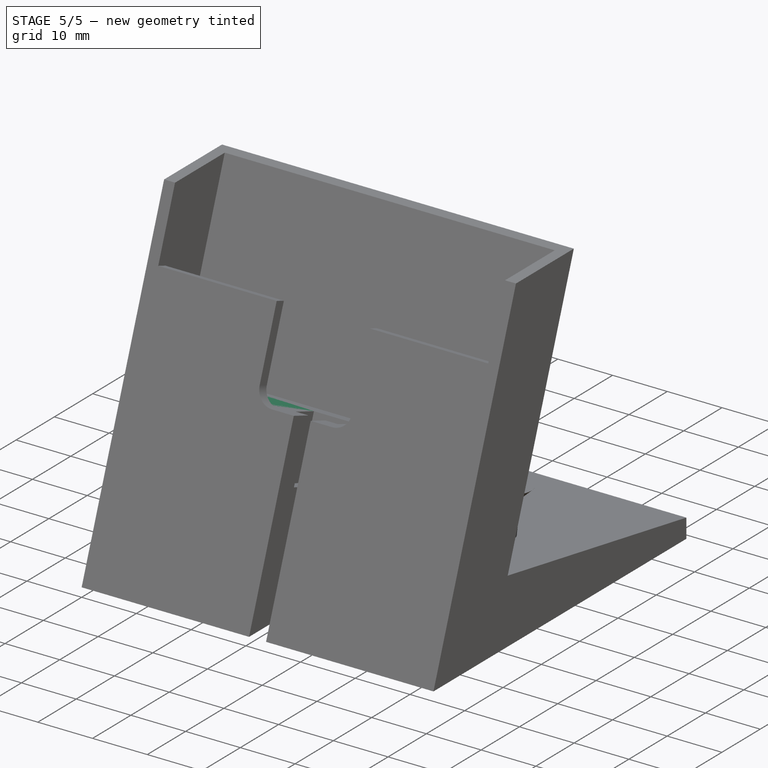
[diagram: stage 5 of 5 — iso view after this stage's code; geometry added in this stage tinted green]
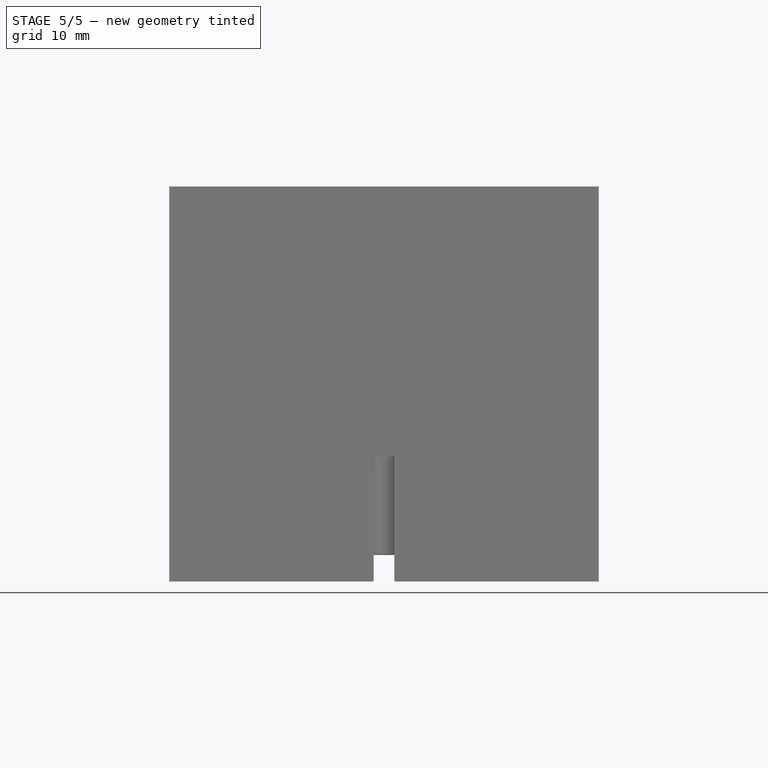
[diagram: stage 5 of 5 — front view after this stage's code; geometry added in this stage tinted green]
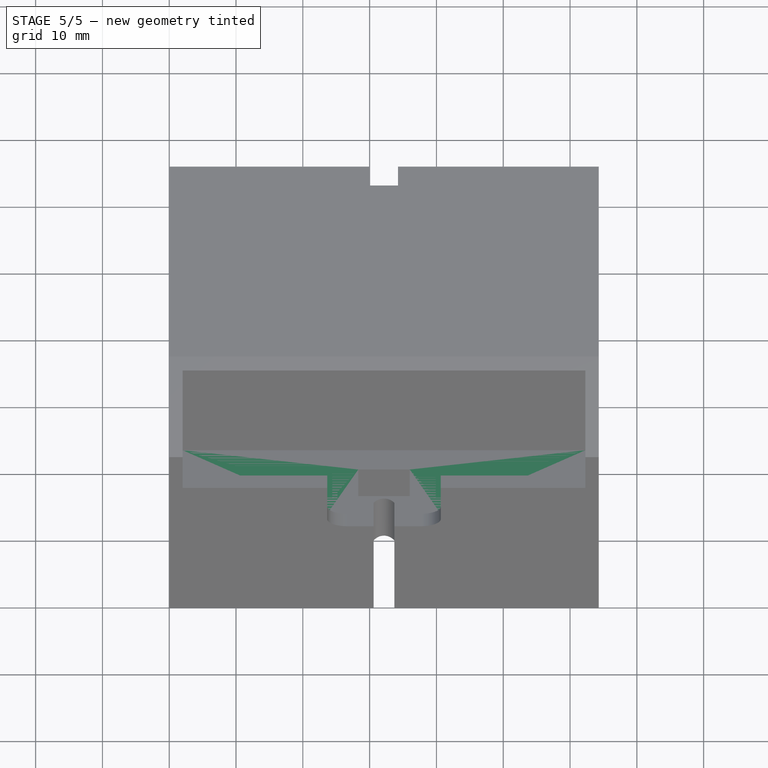
[diagram: stage 5 of 5 — top view after this stage's code; geometry added in this stage tinted green]
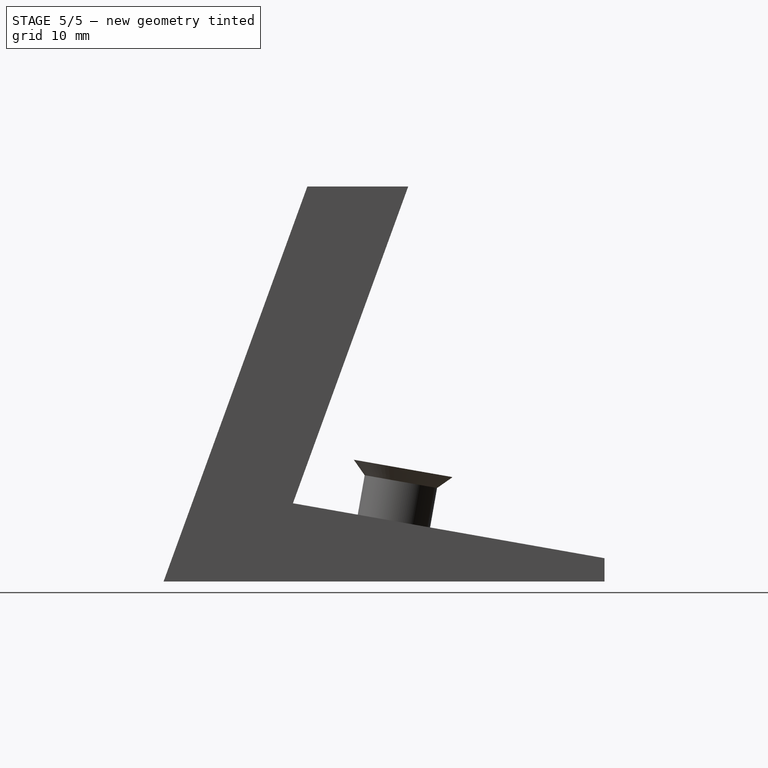
[diagram: stage 5 of 5 — right view after this stage's code; geometry added in this stage tinted green]
FEATURE [PartDesign::Chamfer] Chamfer
  Base = -> Pocket009 [Edge26]
  Size = 0.1
FEATURE [PartDesign::Chamfer] Chamfer002
  Base = -> Fillet [Edge339,Edge293]
  Size = 4
FEATURE [PartDesign::Fillet] Fillet001
  Base = -> Chamfer002 [Edge405,Edge395,Edge397,Edge399,Edge407]
  Radius = 0.8
FEATURE [PartDesign::Chamfer] Chamfer003
  Base = -> Fillet001 [Edge89]
  Size = 12.2
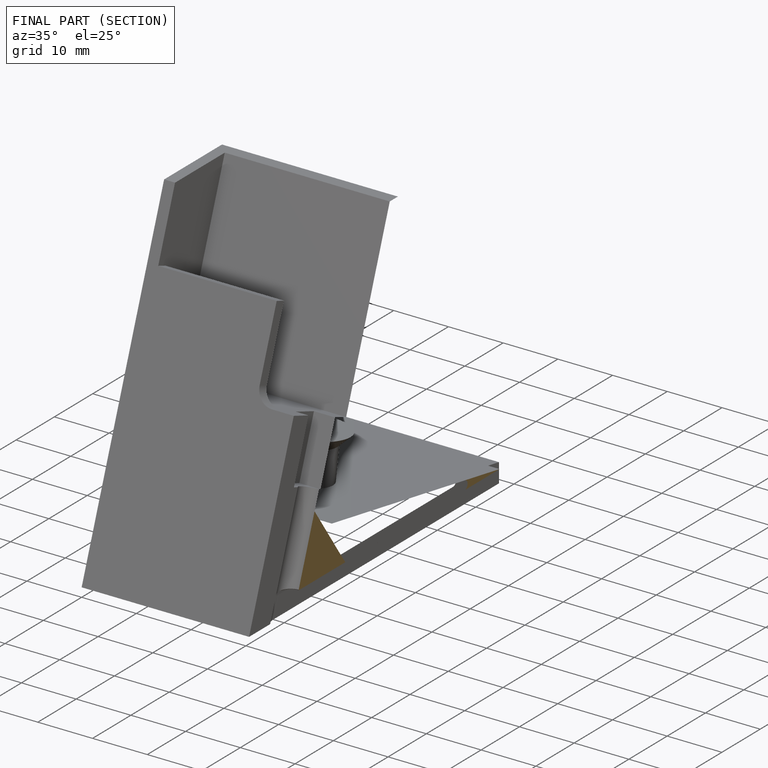
[diagram: finished part — half-section view (interior)]
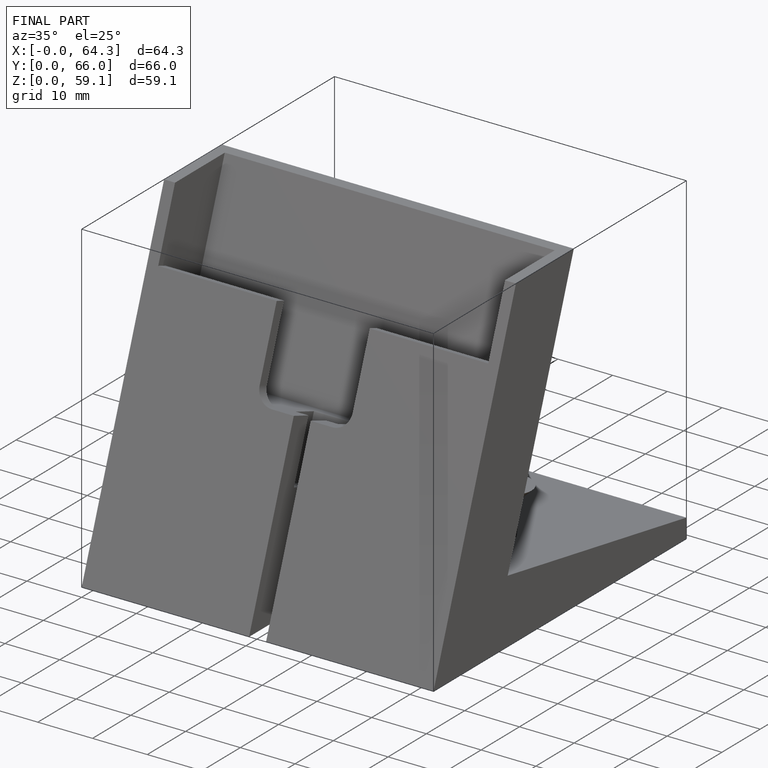
[diagram: finished part — iso view with bounding-box wireframe]
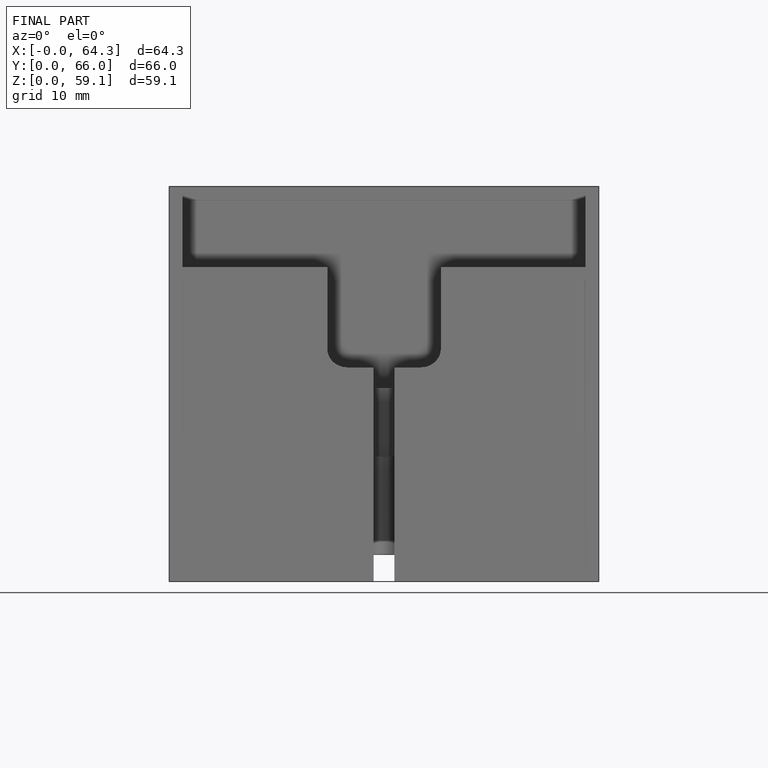
[diagram: finished part — front view with bounding-box wireframe]
